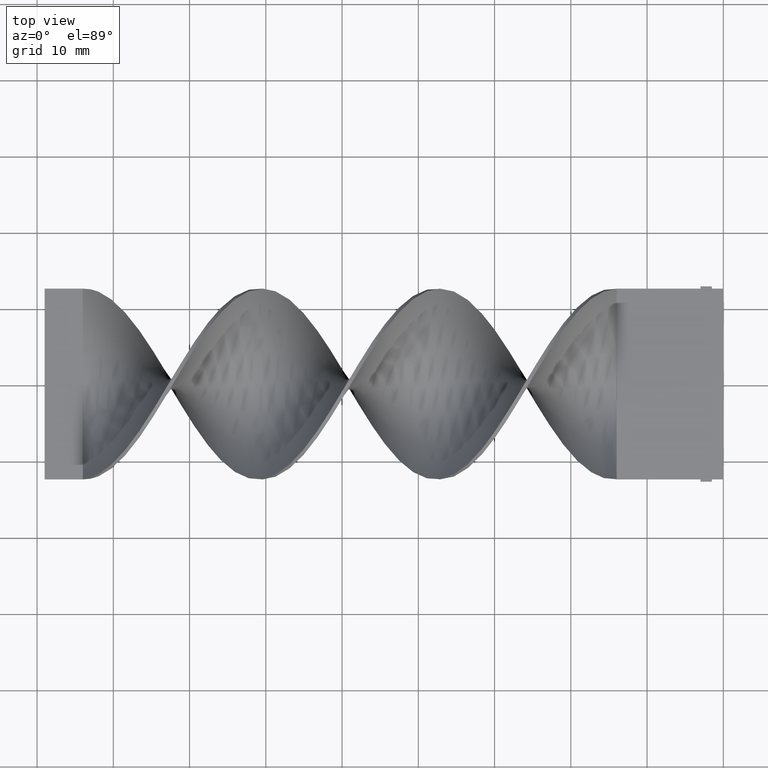
[diagram: clean part render]
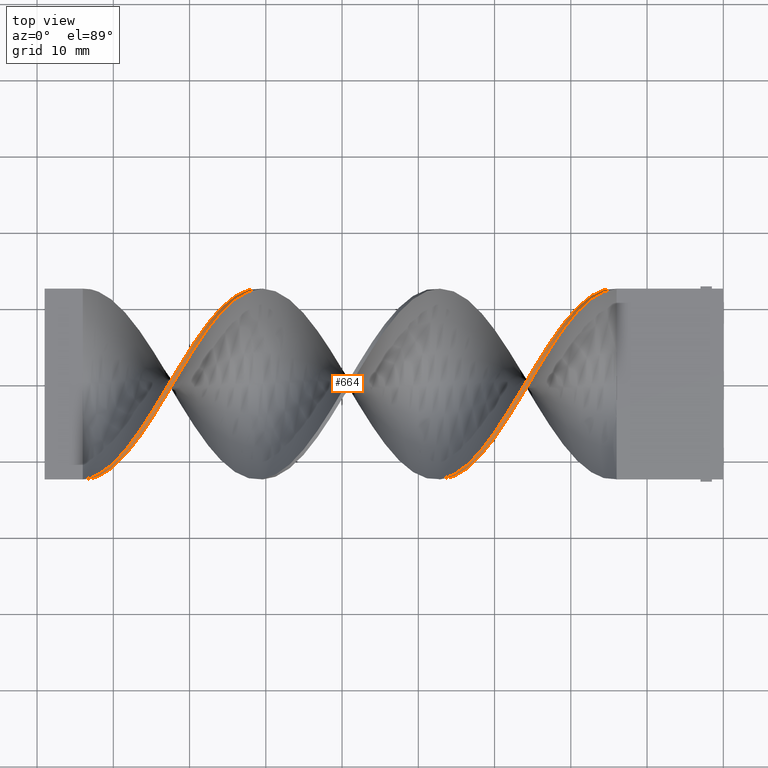
[diagram: same view with one face highlighted and labeled with its STEP entity id]
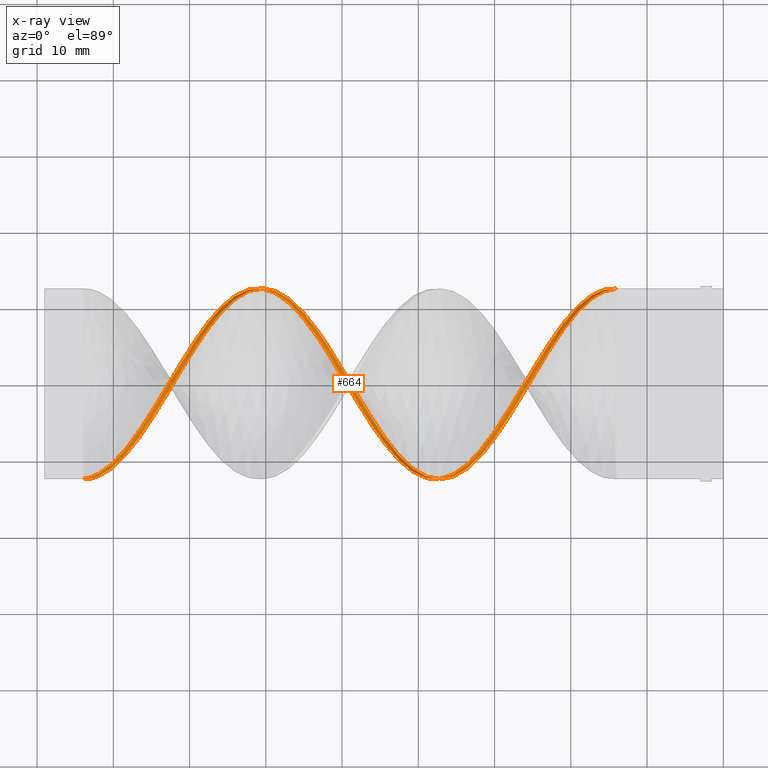
[diagram: x-ray of the same camera — body ghosted, the highlighted face saturated]
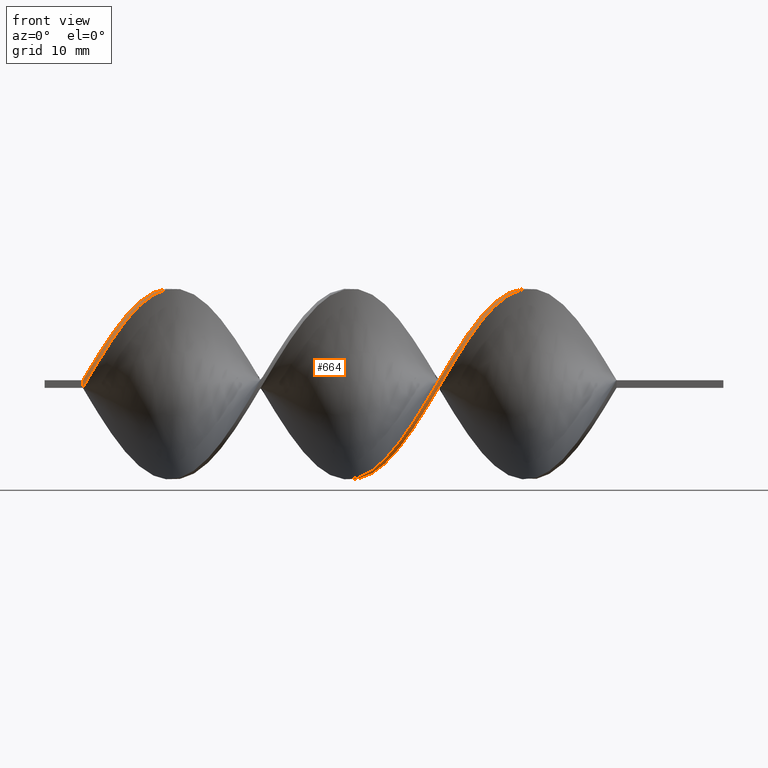
[diagram: same view with one face highlighted and labeled with its STEP entity id]
A machine part, top view. The second image highlights one B-rep face of the part: STEP entity #664.
The next image is the same camera in x-ray: the body ghosted, the highlighted face saturated — about 2% of this face is hidden behind the body in this view.
A second angle (front view) of the same face is appended — the face is thin or edge-on in the first view.
In plain terms, the highlighted face is a freeform B-spline surface patch.
Its self-contained STEP definition (entity closure, byte-faithful):
#2 = EDGE_CURVE ( 'NONE', #1228, #751, #1031, .T. ) ;
#14 = CARTESIAN_POINT ( 'NONE',  ( -80.41025641025640880, -11.30056190668700822, 5.366311637720503569 ) ) ;
#17 = CARTESIAN_POINT ( 'NONE',  ( -28.35897435897435770, -3.965052966688987546, 11.86500547708895326 ) ) ;
#20 = CARTESIAN_POINT ( 'NONE',  ( -25.66666666666666785, -0.5036723384328426478, 12.59180846082103855 ) ) ;
#23 = CARTESIAN_POINT ( 'NONE',  ( -83.10256410256410220, -12.56071099161113658, 1.017774790278262564 ) ) ;
#28 = CARTESIAN_POINT ( 'NONE',  ( -31.05128205128205821, -8.726917657472034406, 9.091107431892414326 ) ) ;
#32 = CARTESIAN_POINT ( 'NONE',  ( -81.30769230769233502, -11.95215010832773039, 3.994174999484638722 ) ) ;
#36 = CARTESIAN_POINT ( 'NONE',  ( -15.79487179487179205, 12.01711488568186859, 3.476916712307497548 ) ) ;
#37 = CARTESIAN_POINT ( 'NONE',  ( -27.46153846153846345, -3.502453542048290291, 12.10537671137499238 ) ) ;
#50 = CARTESIAN_POINT ( 'NONE',  ( -32.84615384615384670, -10.07673670631160689, 7.567476692410685324 ) ) ;
#53 = EDGE_CURVE ( 'NONE', #751, #1362, #1312, .T. ) ;
#65 = CARTESIAN_POINT ( 'NONE',  ( -24.76923076923076650, 2.003062940240565304, 12.34859258609801458 ) ) ;
#68 = CARTESIAN_POINT ( 'NONE',  ( -64.25641025641024839, 10.83583873464323943, 6.251767663373711592 ) ) ;
#75 = CARTESIAN_POINT ( 'NONE',  ( -46.30769230769230660, -3.965052966688992875, -11.86500547708895148 ) ) ;
#78 = CARTESIAN_POINT ( 'NONE',  ( -56.17948717948717530, 10.64897370504628604, -6.738448275956370637 ) ) ;
#79 = CARTESIAN_POINT ( 'NONE',  ( -57.07692307692307310, 10.83583873464323410, -6.251767663373719586 ) ) ;
#80 = LINE ( 'NONE', #1460, #723 ) ;
#84 = CARTESIAN_POINT ( 'NONE',  ( -77.71794871794872961, -8.726917657472034406, 9.091107431892414326 ) ) ;
#88 = CARTESIAN_POINT ( 'NONE',  ( -60.66666666666666430, 12.49999999999999822, -0.5000000000000000000 ) ) ;
#89 = CARTESIAN_POINT ( 'NONE',  ( -56.17948717948717530, 10.07673670631160334, -7.567476692410687100 ) ) ;
#95 = CARTESIAN_POINT ( 'NONE',  ( -37.33333333333332860, -12.50000000000000178, 0.5000000000000015543 ) ) ;
#104 = CARTESIAN_POINT ( 'NONE',  ( -75.92307692307691980, -5.405725462660114111, 11.38356088229227048 ) ) ;
#105 = CARTESIAN_POINT ( 'NONE',  ( -39.12820512820512420, -12.25643054996943171, -2.505974894881441539 ) ) ;
#109 = CARTESIAN_POINT ( 'NONE',  ( -18.48717948717948545, 10.07673670631160512, 7.567476692410683548 ) ) ;
#110 = CARTESIAN_POINT ( 'NONE',  ( -80.41025641025640880, -10.83583873464324121, 6.251767663373713368 ) ) ;
#113 = CARTESIAN_POINT ( 'NONE',  ( -23.87179487179487580, 3.502453542048288071, 12.10537671137499238 ) ) ;
#128 = CARTESIAN_POINT ( 'NONE',  ( -20.28205128205128460, 7.972909339725125832, 9.759100511780298248 ) ) ;
#135 = CARTESIAN_POINT ( 'NONE',  ( -27.46153846153846345, -2.524380470717864977, 12.34645007188564136 ) ) ;
#153 = CARTESIAN_POINT ( 'NONE',  ( -35.53846153846153300, -12.01711488568187214, 3.476916712307501989 ) ) ;
#155 = CARTESIAN_POINT ( 'NONE',  ( -32.84615384615384670, -10.64897370504628960, 6.738448275956368860 ) ) ;
#163 = CARTESIAN_POINT ( 'NONE',  ( -31.94871794871794535, -9.687945681259160224, 7.914777853924392481 ) ) ;
#182 = CARTESIAN_POINT ( 'NONE',  ( -21.17948717948717885, 7.512301267086275658, 10.00326595030512777 ) ) ;
#195 = CARTESIAN_POINT ( 'NONE',  ( -52.58974358974358410, 6.297684876700509804, -10.91542446871784477 ) ) ;
#206 = CARTESIAN_POINT ( 'NONE',  ( -57.97435897435897090, 11.59494076297487197, -4.936058634336744966 ) ) ;
#207 = CARTESIAN_POINT ( 'NONE',  ( -55.28205128205128460, 9.024823023018360146, -8.663288602095494895 ) ) ;
#212 = CARTESIAN_POINT ( 'NONE',  ( -72.33333333333332860, -0.5036723384328426478, 12.59180846082103855 ) ) ;
#216 = CARTESIAN_POINT ( 'NONE',  ( -70.53846153846153300, 3.502453542048288071, 12.10537671137499238 ) ) ;
#217 = CARTESIAN_POINT ( 'NONE',  ( -68.74358974358973740, 6.297684876700516021, 10.91542446871784655 ) ) ;
#220 = CARTESIAN_POINT ( 'NONE',  ( -70.53846153846153300, 2.524380470717862757, 12.34645007188563959 ) ) ;
#223 = CARTESIAN_POINT ( 'NONE',  ( -69.64102564102564941, 3.965052966688987546, 11.86500547708895148 ) ) ;
#227 = CARTESIAN_POINT ( 'NONE',  ( -60.66666666666666430, 12.49999999999999822, -0.5000000000000000000 ) ) ;
#233 = CARTESIAN_POINT ( 'NONE',  ( -49.89743589743589069, 1.010354066142500118, -12.46912926635333818 ) ) ;
#234 = CARTESIAN_POINT ( 'NONE',  ( -37.33333333333332860, -12.50000000000000178, 0.5000000000000015543 ) ) ;
#240 = CARTESIAN_POINT ( 'NONE',  ( -26.56410256410256210, -2.003062940240564860, 12.34859258609801458 ) ) ;
#243 = CARTESIAN_POINT ( 'NONE',  ( -20.28205128205128460, 8.726917657472036183, 9.091107431892410773 ) ) ;
#247 = CARTESIAN_POINT ( 'NONE',  ( -13.99999999999999822, 12.49999999999999822, 0.5000000000000000000 ) ) ;
#251 = CARTESIAN_POINT ( 'NONE',  ( -81.30769230769232081, -11.95215010832773039, 3.994174999484638722 ) ) ;
#254 = CARTESIAN_POINT ( 'NONE',  ( -29.25641025641025905, -6.297684876700517798, 10.91542446871784655 ) ) ;
#255 = CARTESIAN_POINT ( 'NONE',  ( -13.99999999999999822, 12.49999999999999822, -0.5000000000000000000 ) ) ;
#258 = CARTESIAN_POINT ( 'NONE',  ( -76.82051282051281760, -7.512301267086276546, 10.00326595030512955 ) ) ;
#259 = ORIENTED_EDGE ( 'NONE', *, *, #832, .T. ) ;
#268 = CARTESIAN_POINT ( 'NONE',  ( -28.35897435897435770, -4.900069209374403378, 11.51040059004641769 ) ) ;
#279 = CARTESIAN_POINT ( 'NONE',  ( -40.02564102564102200, -11.59494076297487730, -4.936058634336734308 ) ) ;
#284 = CARTESIAN_POINT ( 'NONE',  ( -32.84615384615384670, -10.64897370504628960, 6.738448275956369748 ) ) ;
#287 = CARTESIAN_POINT ( 'NONE',  ( -31.05128205128205465, -7.972909339725124944, 9.759100511780301801 ) ) ;
#289 = CARTESIAN_POINT ( 'NONE',  ( -84.00000000000000000, -12.50000000000000178, -0.4999999999999985012 ) ) ;
#290 = CARTESIAN_POINT ( 'NONE',  ( -35.53846153846153300, -12.25643054996943171, 2.505974894881450421 ) ) ;
#293 = CARTESIAN_POINT ( 'NONE',  ( -76.82051282051281760, -6.689317401192620416, 10.57133069703628436 ) ) ;
#296 = CARTESIAN_POINT ( 'NONE',  ( -34.64102564102564230, -11.59494076297487553, 4.936058634336743189 ) ) ;
#299 = ORIENTED_EDGE ( 'NONE', *, *, #2, .F. ) ;
#303 =( BOUNDED_SURFACE ( )  B_SPLINE_SURFACE ( 1, 2, ( 
 ( #1589, #1614, #1154, #755, #1397, #1016, #1504, #128, #773, #898, #1035, #882, #394, #20, #764, #37, #268, #1274, #646, #28, #163, #284, #1025, #527, #654, #782, #1286, #662, #1163, #1528, #423, #792, #1376, #323, #715, #466, #75, #1100, #1559, #959, #1231, #1587, #456, #195, #485, #969, #1212, #1467, #708, #823, #1450, #352, #1599, #1575, #846, #1329, #68, #1337, #576, #334, #583, #698, #223, #1347, #722, #212, #1084, #1568, #1075, #952, #834, #84, #592, #776, #14, #32, #878, #23, #591 ),
 ( #1176, #1421, #305, #426, #1174, #441, #983, #243, #349, #743, #370, #113, #340, #1610, #1248, #135, #17, #523, #1524, #1011, #1509, #889, #541, #1402, #153, #1359, #234, #1581, #105, #965, #1461, #1479, #611, #1472, #859, #618, #727, #1604, #1088, #326, #1580, #1323, #955, #838, #1334, #964, #207, #1224, #79, #603, #1104, #825, #88, #1080, #1561, #1602, #1340, #972, #1470, #356, #477, #1441, #980, #216, #850, #615, #535, #1171, #1191, #333, #293, #568, #448, #935, #311, #1138, #472, #359, #1445 ) ),
 .UNSPECIFIED., .F., .F., .F. ) 
 B_SPLINE_SURFACE_WITH_KNOTS ( ( 2, 2 ),
 ( 3, 2, 2, 2, 2, 2, 2, 2, 2, 2, 2, 2, 2, 2, 2, 2, 2, 2, 2, 2, 2, 2, 2, 2, 2, 2, 2, 2, 2, 2, 2, 2, 2, 2, 2, 2, 2, 2, 2, 3 ),
 ( 0.000000000000000000, 1.000000000000000000 ),
 ( 0.000000000000000000, 0.01923076923076923184, 0.03846153846153846367, 0.05769230769230769551, 0.07692307692307692735, 0.09615384615384615918, 0.1153846153846153910, 0.1346153846153846090, 0.1538461538461538547, 0.1730769230769230727, 0.1923076923076923184, 0.2115384615384615363, 0.2307692307692307820, 0.2500000000000000000, 0.2692307692307692180, 0.2884615384615384359, 0.3076923076923077094, 0.3269230769230769273, 0.3461538461538461453, 0.3653846153846153633, 0.3846153846153846367, 0.4038461538461538547, 0.4230769230769230727, 0.4423076923076922906, 0.4615384615384615641, 0.4807692307692307820, 0.5000000000000000000, 0.5192307692307692735, 0.5384615384615384359, 0.5576923076923077094, 0.5769230769230768718, 0.5961538461538461453, 0.6153846153846154188, 0.6346153846153845812, 0.6538461538461538547, 0.6730769230769231282, 0.6923076923076922906, 0.7115384615384615641, 0.7307692307692307265, 0.7500000000000000000 ),
 .UNSPECIFIED. ) 
 GEOMETRIC_REPRESENTATION_ITEM ( )  RATIONAL_B_SPLINE_SURFACE ( (
 ( 1.000000000000000000, 0.9927088740980539727, 1.000000000000000000, 0.9927088740980539727, 1.000000000000000000, 0.9927088740980539727, 1.000000000000000000, 0.9927088740980539727, 1.000000000000000000, 0.9927088740980539727, 1.000000000000000000, 0.9927088740980539727, 1.000000000000000000, 0.9927088740980539727, 1.000000000000000000, 0.9927088740980539727, 1.000000000000000000, 0.9927088740980539727, 1.000000000000000000, 0.9927088740980539727, 1.000000000000000000, 0.9927088740980539727, 1.000000000000000000, 0.9927088740980539727, 1.000000000000000000, 0.9927088740980539727, 1.000000000000000000, 0.9927088740980539727, 1.000000000000000000, 0.9927088740980539727, 1.000000000000000000, 0.9927088740980539727, 1.000000000000000000, 0.9927088740980539727, 1.000000000000000000, 0.9927088740980539727, 1.000000000000000000, 0.9927088740980539727, 1.000000000000000000, 0.9927088740980539727, 1.000000000000000000, 0.9927088740980539727, 1.000000000000000000, 0.9927088740980539727, 1.000000000000000000, 0.9927088740980539727, 1.000000000000000000, 0.9927088740980539727, 1.000000000000000000, 0.9927088740980539727, 1.000000000000000000, 0.9927088740980539727, 1.000000000000000000, 0.9927088740980539727, 1.000000000000000000, 0.9927088740980539727, 1.000000000000000000, 0.9927088740980539727, 1.000000000000000000, 0.9927088740980539727, 1.000000000000000000, 0.9927088740980539727, 1.000000000000000000, 0.9927088740980539727, 1.000000000000000000, 0.9927088740980539727, 1.000000000000000000, 0.9927088740980539727, 1.000000000000000000, 0.9927088740980539727, 1.000000000000000000, 0.9927088740980539727, 1.000000000000000000, 0.9927088740980539727, 1.000000000000000000, 0.9927088740980539727, 1.000000000000000000, 0.9927088740980539727, 1.000000000000000000),
 ( 1.000000000000000000, 0.9927088740980539727, 1.000000000000000000, 0.9927088740980539727, 1.000000000000000000, 0.9927088740980539727, 1.000000000000000000, 0.9927088740980539727, 1.000000000000000000, 0.9927088740980539727, 1.000000000000000000, 0.9927088740980539727, 1.000000000000000000, 0.9927088740980539727, 1.000000000000000000, 0.9927088740980539727, 1.000000000000000000, 0.9927088740980539727, 1.000000000000000000, 0.9927088740980539727, 1.000000000000000000, 0.9927088740980539727, 1.000000000000000000, 0.9927088740980539727, 1.000000000000000000, 0.9927088740980539727, 1.000000000000000000, 0.9927088740980539727, 1.000000000000000000, 0.9927088740980539727, 1.000000000000000000, 0.9927088740980539727, 1.000000000000000000, 0.9927088740980539727, 1.000000000000000000, 0.9927088740980539727, 1.000000000000000000, 0.9927088740980539727, 1.000000000000000000, 0.9927088740980539727, 1.000000000000000000, 0.9927088740980539727, 1.000000000000000000, 0.9927088740980539727, 1.000000000000000000, 0.9927088740980539727, 1.000000000000000000, 0.9927088740980539727, 1.000000000000000000, 0.9927088740980539727, 1.000000000000000000, 0.9927088740980539727, 1.000000000000000000, 0.9927088740980539727, 1.000000000000000000, 0.9927088740980539727, 1.000000000000000000, 0.9927088740980539727, 1.000000000000000000, 0.9927088740980539727, 1.000000000000000000, 0.9927088740980539727, 1.000000000000000000, 0.9927088740980539727, 1.000000000000000000, 0.9927088740980539727, 1.000000000000000000, 0.9927088740980539727, 1.000000000000000000, 0.9927088740980539727, 1.000000000000000000, 0.9927088740980539727, 1.000000000000000000, 0.9927088740980539727, 1.000000000000000000, 0.9927088740980539727, 1.000000000000000000, 0.9927088740980539727, 1.000000000000000000) ) ) 
 REPRESENTATION_ITEM ( '' )  SURFACE ( )  );
#305 = CARTESIAN_POINT ( 'NONE',  ( -15.79487179487179205, 12.25643054996942816, 2.505974894881445980 ) ) ;
#311 = CARTESIAN_POINT ( 'NONE',  ( -80.41025641025640880, -10.83583873464324121, 6.251767663373713368 ) ) ;
#317 = CARTESIAN_POINT ( 'NONE',  ( -13.99999999999999822, 12.49999999999999822, -0.5000000000000000000 ) ) ;
#323 = CARTESIAN_POINT ( 'NONE',  ( -43.61538461538461320, -7.972909339725131161, -9.759100511780294696 ) ) ;
#325 = CARTESIAN_POINT ( 'NONE',  ( -45.41025641025640880, -6.297684876700524903, -10.91542446871784122 ) ) ;
#326 = CARTESIAN_POINT ( 'NONE',  ( -49.00000000000000711, -0.5036723384328456454, -12.59180846082103855 ) ) ;
#331 = CARTESIAN_POINT ( 'NONE',  ( -69.64102564102564941, 3.965052966688987546, 11.86500547708895148 ) ) ;
#333 = CARTESIAN_POINT ( 'NONE',  ( -75.92307692307693401, -5.405725462660114999, 11.38356088229226870 ) ) ;
#334 = CARTESIAN_POINT ( 'NONE',  ( -66.94871794871794179, 7.972909339725125832, 9.759100511780298248 ) ) ;
#338 = CARTESIAN_POINT ( 'NONE',  ( -38.23076923076922640, -12.56071099161113480, -1.017774790278253905 ) ) ;
#340 = CARTESIAN_POINT ( 'NONE',  ( -24.76923076923076650, 2.003062940240565304, 12.34859258609801458 ) ) ;
#341 = CARTESIAN_POINT ( 'NONE',  ( -62.46153846153845990, 12.01711488568186859, 3.476916712307497548 ) ) ;
#346 = CARTESIAN_POINT ( 'NONE',  ( -76.82051282051281760, -6.689317401192620416, 10.57133069703628436 ) ) ;
#349 = CARTESIAN_POINT ( 'NONE',  ( -21.17948717948717885, 7.512301267086275658, 10.00326595030512777 ) ) ;
#352 = CARTESIAN_POINT ( 'NONE',  ( -59.76923076923077360, 12.56071099161113303, -1.017774790278264119 ) ) ;
#356 = CARTESIAN_POINT ( 'NONE',  ( -66.94871794871794179, 8.726917657472036183, 9.091107431892410773 ) ) ;
#357 = CARTESIAN_POINT ( 'NONE',  ( -72.33333333333332860, 0.5036723384328403164, 12.59180846082103855 ) ) ;
#359 = CARTESIAN_POINT ( 'NONE',  ( -83.10256410256410220, -12.43928900838887230, 2.017774790278262564 ) ) ;
#360 = CARTESIAN_POINT ( 'NONE',  ( -74.12820512820510999, -3.502453542048290291, 12.10537671137499238 ) ) ;
#368 = CARTESIAN_POINT ( 'NONE',  ( -66.94871794871795601, 8.726917657472036183, 9.091107431892412549 ) ) ;
#370 = CARTESIAN_POINT ( 'NONE',  ( -22.97435897435897090, 4.900069209374403378, 11.51040059004641591 ) ) ;
#373 = CARTESIAN_POINT ( 'NONE',  ( -20.28205128205128460, 7.972909339725126721, 9.759100511780298248 ) ) ;
#380 = CARTESIAN_POINT ( 'NONE',  ( -16.69230769230769340, 11.59494076297487375, 4.936058634336738749 ) ) ;
#387 = CARTESIAN_POINT ( 'NONE',  ( -27.46153846153846345, -3.502453542048290291, 12.10537671137499238 ) ) ;
#394 = CARTESIAN_POINT ( 'NONE',  ( -24.76923076923076650, 1.010354066142511442, 12.46912926635333640 ) ) ;
#404 = CARTESIAN_POINT ( 'NONE',  ( -78.61538461538461320, -9.687945681259160224, 7.914777853924392481 ) ) ;
#408 = CARTESIAN_POINT ( 'NONE',  ( -36.43589743589743790, -12.56071099161113480, 1.017774790278262564 ) ) ;
#412 = CARTESIAN_POINT ( 'NONE',  ( -79.51282051282051100, -10.64897370504628960, 6.738448275956368860 ) ) ;
#422 = CARTESIAN_POINT ( 'NONE',  ( -17.58974358974358765, 10.83583873464323943, 6.251767663373711592 ) ) ;
#423 = CARTESIAN_POINT ( 'NONE',  ( -40.92307692307691980, -10.83583873464324299, -6.251767663373710704 ) ) ;
#426 = CARTESIAN_POINT ( 'NONE',  ( -16.69230769230769695, 11.95215010832772862, 3.994174999484634281 ) ) ;
#428 = CARTESIAN_POINT ( 'NONE',  ( -40.92307692307691980, -10.83583873464324299, -6.251767663373710704 ) ) ;
#430 = CARTESIAN_POINT ( 'NONE',  ( -25.66666666666666785, 0.5036723384328403164, 12.59180846082103855 ) ) ;
#441 = CARTESIAN_POINT ( 'NONE',  ( -18.48717948717948545, 10.64897370504628782, 6.738448275956367972 ) ) ;
#448 = CARTESIAN_POINT ( 'NONE',  ( -78.61538461538461320, -9.024823023018365475, 8.663288602095494895 ) ) ;
#456 = CARTESIAN_POINT ( 'NONE',  ( -51.69230769230769340, 4.900069209374400714, -11.51040059004641769 ) ) ;
#459 = CARTESIAN_POINT ( 'NONE',  ( -30.15384615384615330, -6.689317401192620416, 10.57133069703628436 ) ) ;
#463 = CARTESIAN_POINT ( 'NONE',  ( -66.05128205128204399, 9.024823023018365475, 8.663288602095489566 ) ) ;
#466 = CARTESIAN_POINT ( 'NONE',  ( -45.41025641025640880, -5.405725462660122993, -11.38356088229226515 ) ) ;
#468 = CARTESIAN_POINT ( 'NONE',  ( -41.82051282051281760, -10.07673670631161045, -7.567476692410682659 ) ) ;
#469 = CARTESIAN_POINT ( 'NONE',  ( -46.30769230769230660, -4.900069209374408707, -11.51040059004641591 ) ) ;
#472 = CARTESIAN_POINT ( 'NONE',  ( -82.20512820512820440, -12.01711488568187214, 3.476916712307501989 ) ) ;
#477 = CARTESIAN_POINT ( 'NONE',  ( -67.84615384615385381, 7.512301267086275658, 10.00326595030512777 ) ) ;
#485 = CARTESIAN_POINT ( 'NONE',  ( -53.48717948717948900, 7.512301267086271217, -10.00326595030513133 ) ) ;
#488 = CARTESIAN_POINT ( 'NONE',  ( -63.35897435897436480, 11.95215010832772862, 3.994174999484634281 ) ) ;
#494 = CARTESIAN_POINT ( 'NONE',  ( -54.38461538461538680, 7.972909339725116062, -9.759100511780305354 ) ) ;
#500 = CARTESIAN_POINT ( 'NONE',  ( -77.71794871794874382, -7.972909339725124944, 9.759100511780301801 ) ) ;
#511 = CARTESIAN_POINT ( 'NONE',  ( -13.99999999999999822, 12.49999999999999822, 0.5000000000000000000 ) ) ;
#523 = CARTESIAN_POINT ( 'NONE',  ( -29.25641025641025905, -5.405725462660114999, 11.38356088229226870 ) ) ;
#527 = CARTESIAN_POINT ( 'NONE',  ( -34.64102564102564230, -11.95215010832773039, 3.994174999484638722 ) ) ;
#535 = CARTESIAN_POINT ( 'NONE',  ( -73.23076923076924061, -1.010354066142510998, 12.46912926635333640 ) ) ;
#541 = CARTESIAN_POINT ( 'NONE',  ( -33.74358974358974450, -10.83583873464324121, 6.251767663373713368 ) ) ;
#544 = CARTESIAN_POINT ( 'NONE',  ( -31.05128205128205465, -8.726917657472034406, 9.091107431892416102 ) ) ;
#547 = CARTESIAN_POINT ( 'NONE',  ( -37.33333333333332860, -12.50000000000000178, -0.4999999999999985012 ) ) ;
#555 = CARTESIAN_POINT ( 'NONE',  ( -19.38461538461538325, 9.687945681259160224, 7.914777853924387152 ) ) ;
#568 = CARTESIAN_POINT ( 'NONE',  ( -77.71794871794872961, -7.972909339725124056, 9.759100511780301801 ) ) ;
#570 = CARTESIAN_POINT ( 'NONE',  ( -51.69230769230769340, 4.900069209374400714, -11.51040059004641769 ) ) ;
#576 = CARTESIAN_POINT ( 'NONE',  ( -66.05128205128204399, 9.024823023018365475, 8.663288602095489566 ) ) ;
#578 = CARTESIAN_POINT ( 'NONE',  ( -47.20512820512820440, -2.524380470717865421, -12.34645007188563959 ) ) ;
#580 = CARTESIAN_POINT ( 'NONE',  ( -23.87179487179487580, 3.502453542048288071, 12.10537671137499238 ) ) ;
#583 = CARTESIAN_POINT ( 'NONE',  ( -67.84615384615385381, 6.689317401192619528, 10.57133069703628259 ) ) ;
#586 = CARTESIAN_POINT ( 'NONE',  ( -42.71794871794872250, -9.687945681259165553, -7.914777853924385376 ) ) ;
#588 = CARTESIAN_POINT ( 'NONE',  ( -75.02564102564102200, -4.900069209374403378, 11.51040059004641769 ) ) ;
#591 = CARTESIAN_POINT ( 'NONE',  ( -84.00000000000000000, -12.50000000000000178, -0.4999999999999985012 ) ) ;
#592 = CARTESIAN_POINT ( 'NONE',  ( -78.61538461538461320, -9.687945681259160224, 7.914777853924392481 ) ) ;
#603 = CARTESIAN_POINT ( 'NONE',  ( -57.97435897435897090, 11.59494076297487197, -4.936058634336744966 ) ) ;
#604 = CARTESIAN_POINT ( 'NONE',  ( -41.82051282051281760, -10.64897370504629315, -6.738448275956366196 ) ) ;
#607 = CARTESIAN_POINT ( 'NONE',  ( -63.35897435897436480, 11.59494076297487375, 4.936058634336738749 ) ) ;
#610 = CARTESIAN_POINT ( 'NONE',  ( -52.58974358974359120, 5.405725462660103453, -11.38356088229227225 ) ) ;
#611 = CARTESIAN_POINT ( 'NONE',  ( -42.71794871794872250, -9.687945681259165553, -7.914777853924385376 ) ) ;
#615 = CARTESIAN_POINT ( 'NONE',  ( -72.33333333333332860, 0.5036723384328402053, 12.59180846082103855 ) ) ;
#617 = CARTESIAN_POINT ( 'NONE',  ( -58.87179487179486870, 12.01711488568186681, -3.476916712307509094 ) ) ;
#618 = CARTESIAN_POINT ( 'NONE',  ( -45.41025641025640880, -6.297684876700524903, -10.91542446871784122 ) ) ;
#621 = EDGE_LOOP ( 'NONE', ( #1246, #259, #1352, #299 ) ) ;
#646 = CARTESIAN_POINT ( 'NONE',  ( -30.15384615384615330, -7.512301267086276546, 10.00326595030512955 ) ) ;
#654 = CARTESIAN_POINT ( 'NONE',  ( -35.53846153846153300, -12.25643054996943171, 2.505974894881450421 ) ) ;
#661 = CARTESIAN_POINT ( 'NONE',  ( -33.74358974358974450, -11.30056190668700822, 5.366311637720503569 ) ) ;
#662 = CARTESIAN_POINT ( 'NONE',  ( -38.23076923076922640, -12.43928900838887230, -2.017774790278253683 ) ) ;
#664 = ADVANCED_FACE ( 'NONE', ( #678 ), #303, .T. ) ;
#674 = CARTESIAN_POINT ( 'NONE',  ( -20.28205128205128460, 8.726917657472036183, 9.091107431892412549 ) ) ;
#678 = FACE_OUTER_BOUND ( 'NONE', #621, .T. ) ;
#689 = CARTESIAN_POINT ( 'NONE',  ( -50.79487179487178850, 3.502453542048282742, -12.10537671137499238 ) ) ;
#690 = CARTESIAN_POINT ( 'NONE',  ( -18.48717948717948545, 10.64897370504628782, 6.738448275956367084 ) ) ;
#698 = CARTESIAN_POINT ( 'NONE',  ( -68.74358974358973740, 5.405725462660113223, 11.38356088229226870 ) ) ;
#702 = CARTESIAN_POINT ( 'NONE',  ( -54.38461538461538680, 8.726917657472025525, -9.091107431892417878 ) ) ;
#703 = CARTESIAN_POINT ( 'NONE',  ( -67.84615384615385381, 7.512301267086275658, 10.00326595030512777 ) ) ;
#706 = CARTESIAN_POINT ( 'NONE',  ( -57.07692307692307310, 11.30056190668700289, -5.366311637720509786 ) ) ;
#708 = CARTESIAN_POINT ( 'NONE',  ( -57.07692307692307310, 11.30056190668700289, -5.366311637720509786 ) ) ;
#710 = CARTESIAN_POINT ( 'NONE',  ( -79.51282051282051100, -10.07673670631160689, 7.567476692410685324 ) ) ;
#715 = CARTESIAN_POINT ( 'NONE',  ( -44.51282051282051100, -6.689317401192623080, -10.57133069703628259 ) ) ;
#717 = CARTESIAN_POINT ( 'NONE',  ( -53.48717948717948900, 6.689317401192615087, -10.57133069703628614 ) ) ;
#722 = CARTESIAN_POINT ( 'NONE',  ( -71.43589743589743080, 1.010354066142511442, 12.46912926635333640 ) ) ;
#723 = VECTOR ( 'NONE', #739, 1000.000000000000000 ) ;
#726 = CARTESIAN_POINT ( 'NONE',  ( -61.56410256410256920, 12.56071099161113125, 1.017774790278256569 ) ) ;
#727 = CARTESIAN_POINT ( 'NONE',  ( -46.30769230769230660, -4.900069209374408707, -11.51040059004641591 ) ) ;
#732 = CARTESIAN_POINT ( 'NONE',  ( -73.23076923076924061, -1.010354066142510998, 12.46912926635333640 ) ) ;
#739 = DIRECTION ( 'NONE',  ( -0.000000000000000000, -0.000000000000000000, -1.000000000000000000 ) ) ;
#743 = CARTESIAN_POINT ( 'NONE',  ( -22.07692307692308376, 6.297684876700516909, 10.91542446871784477 ) ) ;
#744 = CARTESIAN_POINT ( 'NONE',  ( -80.41025641025640880, -11.30056190668700822, 5.366311637720503569 ) ) ;
#751 = VERTEX_POINT ( 'NONE', #1182 ) ;
#754 = CARTESIAN_POINT ( 'NONE',  ( -83.10256410256410220, -12.56071099161113480, 1.017774790278262564 ) ) ;
#755 = CARTESIAN_POINT ( 'NONE',  ( -16.69230769230769695, 11.59494076297487375, 4.936058634336738749 ) ) ;
#757 = CARTESIAN_POINT ( 'NONE',  ( -30.15384615384615330, -7.512301267086276546, 10.00326595030512955 ) ) ;
#764 = CARTESIAN_POINT ( 'NONE',  ( -26.56410256410256210, -2.003062940240564860, 12.34859258609801458 ) ) ;
#773 = CARTESIAN_POINT ( 'NONE',  ( -21.17948717948717885, 6.689317401192619528, 10.57133069703628259 ) ) ;
#776 = CARTESIAN_POINT ( 'NONE',  ( -79.51282051282051100, -10.64897370504628960, 6.738448275956369748 ) ) ;
#782 = CARTESIAN_POINT ( 'NONE',  ( -36.43589743589743790, -12.56071099161113658, 1.017774790278262564 ) ) ;
#792 = CARTESIAN_POINT ( 'NONE',  ( -41.82051282051281760, -10.07673670631161222, -7.567476692410682659 ) ) ;
#795 = CARTESIAN_POINT ( 'NONE',  ( -31.94871794871794535, -9.024823023018365475, 8.663288602095494895 ) ) ;
#802 = CARTESIAN_POINT ( 'NONE',  ( -35.53846153846153300, -12.01711488568187214, 3.476916712307501989 ) ) ;
#811 = CARTESIAN_POINT ( 'NONE',  ( -15.79487179487179205, 12.25643054996942816, 2.505974894881445980 ) ) ;
#816 = CARTESIAN_POINT ( 'NONE',  ( -42.71794871794872250, -9.024823023018370804, -8.663288602095487789 ) ) ;
#817 = CARTESIAN_POINT ( 'NONE',  ( -27.46153846153846345, -2.524380470717864977, 12.34645007188563959 ) ) ;
#823 = CARTESIAN_POINT ( 'NONE',  ( -57.97435897435897090, 11.95215010832772684, -3.994174999484640498 ) ) ;
#825 = CARTESIAN_POINT ( 'NONE',  ( -59.76923076923077360, 12.43928900838886875, -2.017774790278263897 ) ) ;
#832 = EDGE_CURVE ( 'NONE', #1236, #1362, #1591, .T. ) ;
#834 = CARTESIAN_POINT ( 'NONE',  ( -76.82051282051281760, -7.512301267086276546, 10.00326595030512955 ) ) ;
#837 = CARTESIAN_POINT ( 'NONE',  ( -74.12820512820510999, -2.524380470717864977, 12.34645007188563959 ) ) ;
#838 = CARTESIAN_POINT ( 'NONE',  ( -52.58974358974358410, 5.405725462660103453, -11.38356088229227048 ) ) ;
#843 = CARTESIAN_POINT ( 'NONE',  ( -51.69230769230769340, 3.965052966688984881, -11.86500547708895326 ) ) ;
#846 = CARTESIAN_POINT ( 'NONE',  ( -62.46153846153845990, 12.01711488568186859, 3.476916712307497548 ) ) ;
#850 = CARTESIAN_POINT ( 'NONE',  ( -71.43589743589743080, 2.003062940240565304, 12.34859258609801458 ) ) ;
#851 = CARTESIAN_POINT ( 'NONE',  ( -36.43589743589743790, -12.43928900838887230, 2.017774790278262564 ) ) ;
#858 = CARTESIAN_POINT ( 'NONE',  ( -71.43589743589743080, 2.003062940240565304, 12.34859258609801458 ) ) ;
#859 = CARTESIAN_POINT ( 'NONE',  ( -44.51282051282051100, -7.512301267086279211, -10.00326595030512777 ) ) ;
#875 = CARTESIAN_POINT ( 'NONE',  ( -28.35897435897435770, -4.900069209374403378, 11.51040059004641769 ) ) ;
#878 = CARTESIAN_POINT ( 'NONE',  ( -82.20512820512820440, -12.25643054996943171, 2.505974894881450421 ) ) ;
#882 = CARTESIAN_POINT ( 'NONE',  ( -23.87179487179487580, 2.524380470717862757, 12.34645007188564136 ) ) ;
#889 = CARTESIAN_POINT ( 'NONE',  ( -32.84615384615384670, -10.07673670631160867, 7.567476692410685324 ) ) ;
#891 = CARTESIAN_POINT ( 'NONE',  ( -82.20512820512820440, -12.25643054996943171, 2.505974894881450421 ) ) ;
#894 = CARTESIAN_POINT ( 'NONE',  ( -39.12820512820512420, -12.01711488568187569, -3.476916712307494439 ) ) ;
#895 = EDGE_CURVE ( 'NONE', #1228, #1236, #80, .T. ) ;
#898 = CARTESIAN_POINT ( 'NONE',  ( -22.07692307692308376, 5.405725462660113223, 11.38356088229226870 ) ) ;
#922 = CARTESIAN_POINT ( 'NONE',  ( -44.51282051282051100, -6.689317401192623080, -10.57133069703628259 ) ) ;
#929 = CARTESIAN_POINT ( 'NONE',  ( -14.89743589743589602, 12.56071099161113125, 1.017774790278256569 ) ) ;
#935 = CARTESIAN_POINT ( 'NONE',  ( -79.51282051282051100, -10.07673670631160867, 7.567476692410685324 ) ) ;
#942 = CARTESIAN_POINT ( 'NONE',  ( -53.48717948717948900, 7.512301267086271217, -10.00326595030513133 ) ) ;
#948 = CARTESIAN_POINT ( 'NONE',  ( -68.74358974358973740, 5.405725462660112335, 11.38356088229227048 ) ) ;
#952 = CARTESIAN_POINT ( 'NONE',  ( -75.92307692307693401, -6.297684876700518686, 10.91542446871784477 ) ) ;
#954 = CARTESIAN_POINT ( 'NONE',  ( -62.46153846153845990, 12.25643054996942816, 2.505974894881445980 ) ) ;
#955 = CARTESIAN_POINT ( 'NONE',  ( -51.69230769230769340, 3.965052966688984881, -11.86500547708895326 ) ) ;
#959 = CARTESIAN_POINT ( 'NONE',  ( -49.00000000000000711, 0.5036723384328373188, -12.59180846082103855 ) ) ;
#963 = CARTESIAN_POINT ( 'NONE',  ( -66.05128205128204399, 9.687945681259160224, 7.914777853924387152 ) ) ;
#964 = CARTESIAN_POINT ( 'NONE',  ( -54.38461538461538680, 7.972909339725115174, -9.759100511780305354 ) ) ;
#965 = CARTESIAN_POINT ( 'NONE',  ( -40.02564102564102200, -11.95215010832773217, -3.994174999484630284 ) ) ;
#969 = CARTESIAN_POINT ( 'NONE',  ( -54.38461538461538680, 8.726917657472025525, -9.091107431892417878 ) ) ;
#972 = CARTESIAN_POINT ( 'NONE',  ( -65.15384615384614619, 10.64897370504628782, 6.738448275956367972 ) ) ;
#973 = CARTESIAN_POINT ( 'NONE',  ( -70.53846153846153300, 3.502453542048288071, 12.10537671137499238 ) ) ;
#975 = CARTESIAN_POINT ( 'NONE',  ( -72.33333333333332860, -0.5036723384328426478, 12.59180846082103855 ) ) ;
#980 = CARTESIAN_POINT ( 'NONE',  ( -69.64102564102564941, 4.900069209374403378, 11.51040059004641591 ) ) ;
#981 = CARTESIAN_POINT ( 'NONE',  ( -81.30769230769232081, -11.59494076297487553, 4.936058634336743189 ) ) ;
#983 = CARTESIAN_POINT ( 'NONE',  ( -19.38461538461538325, 9.687945681259160224, 7.914777853924387152 ) ) ;
#984 = CARTESIAN_POINT ( 'NONE',  ( -60.66666666666666430, 12.49999999999999822, 0.5000000000000000000 ) ) ;
#989 = CARTESIAN_POINT ( 'NONE',  ( -22.07692307692308020, 5.405725462660112335, 11.38356088229227048 ) ) ;
#1000 = CARTESIAN_POINT ( 'NONE',  ( -22.97435897435897090, 3.965052966688987546, 11.86500547708895148 ) ) ;
#1011 = CARTESIAN_POINT ( 'NONE',  ( -31.05128205128205821, -7.972909339725124056, 9.759100511780301801 ) ) ;
#1013 = CARTESIAN_POINT ( 'NONE',  ( -75.92307692307691980, -6.297684876700517798, 10.91542446871784655 ) ) ;
#1016 = CARTESIAN_POINT ( 'NONE',  ( -18.48717948717948545, 10.07673670631160689, 7.567476692410683548 ) ) ;
#1023 = CARTESIAN_POINT ( 'NONE',  ( -77.71794871794874382, -8.726917657472034406, 9.091107431892416102 ) ) ;
#1025 = CARTESIAN_POINT ( 'NONE',  ( -33.74358974358974450, -11.30056190668700822, 5.366311637720503569 ) ) ;
#1029 = CARTESIAN_POINT ( 'NONE',  ( -38.23076923076922640, -12.43928900838887230, -2.017774790278253683 ) ) ;
#1031 =( BOUNDED_CURVE ( )  B_SPLINE_CURVE ( 2, ( #511, #1243, #36, #380, #422, #109, #1357, #373, #1254, #989, #1000, #1486, #1364, #1497, #240, #387, #875, #254, #757, #544, #1261, #155, #661, #1162, #290, #408, #547, #1029, #894, #279, #428, #468, #816, #1058, #922, #1570, #1050, #578, #1078, #1538, #1300, #689, #570, #1553, #942, #702, #1206, #78, #706, #1095, #1474, #1463, #984, #1483, #341, #607, #1344, #1565, #463, #1107, #1596, #948, #331, #220, #1227, #975, #1327, #360, #588, #1013, #258, #1023, #404, #412, #744, #251, #891, #754, #1259 ),
 .UNSPECIFIED., .F., .T. ) 
 B_SPLINE_CURVE_WITH_KNOTS ( ( 3, 2, 2, 2, 2, 2, 2, 2, 2, 2, 2, 2, 2, 2, 2, 2, 2, 2, 2, 2, 2, 2, 2, 2, 2, 2, 2, 2, 2, 2, 2, 2, 2, 2, 2, 2, 2, 2, 2, 3 ),
 ( 0.000000000000000000, 0.01923076923076923184, 0.03846153846153846367, 0.05769230769230768857, 0.07692307692307692735, 0.09615384615384615918, 0.1153846153846153771, 0.1346153846153846090, 0.1538461538461538547, 0.1730769230769230449, 0.1923076923076923184, 0.2115384615384615363, 0.2307692307692307543, 0.2500000000000000000, 0.2692307692307692180, 0.2884615384615384359, 0.3076923076923077094, 0.3269230769230769273, 0.3461538461538460898, 0.3653846153846153633, 0.3846153846153846367, 0.4038461538461539102, 0.4230769230769230727, 0.4423076923076922906, 0.4615384615384615086, 0.4807692307692307820, 0.5000000000000000000, 0.5192307692307692735, 0.5384615384615384359, 0.5576923076923077094, 0.5769230769230768718, 0.5961538461538461453, 0.6153846153846154188, 0.6346153846153845812, 0.6538461538461538547, 0.6730769230769230171, 0.6923076923076921796, 0.7115384615384615641, 0.7307692307692307265, 0.7500000000000000000 ),
 .UNSPECIFIED. ) 
 CURVE ( )  GEOMETRIC_REPRESENTATION_ITEM ( )  RATIONAL_B_SPLINE_CURVE ( ( 1.000000000000000000, 0.9927088740980539727, 1.000000000000000000, 0.9927088740980539727, 1.000000000000000000, 0.9927088740980539727, 1.000000000000000000, 0.9927088740980539727, 1.000000000000000000, 0.9927088740980539727, 1.000000000000000000, 0.9927088740980539727, 1.000000000000000000, 0.9927088740980539727, 1.000000000000000000, 0.9927088740980539727, 1.000000000000000000, 0.9927088740980539727, 1.000000000000000000, 0.9927088740980539727, 1.000000000000000000, 0.9927088740980539727, 1.000000000000000000, 0.9927088740980539727, 1.000000000000000000, 0.9927088740980539727, 1.000000000000000000, 0.9927088740980539727, 1.000000000000000000, 0.9927088740980539727, 1.000000000000000000, 0.9927088740980539727, 1.000000000000000000, 0.9927088740980539727, 1.000000000000000000, 0.9927088740980539727, 1.000000000000000000, 0.9927088740980539727, 1.000000000000000000, 0.9927088740980539727, 1.000000000000000000, 0.9927088740980539727, 1.000000000000000000, 0.9927088740980539727, 1.000000000000000000, 0.9927088740980539727, 1.000000000000000000, 0.9927088740980539727, 1.000000000000000000, 0.9927088740980539727, 1.000000000000000000, 0.9927088740980539727, 1.000000000000000000, 0.9927088740980539727, 1.000000000000000000, 0.9927088740980539727, 1.000000000000000000, 0.9927088740980539727, 1.000000000000000000, 0.9927088740980539727, 1.000000000000000000, 0.9927088740980539727, 1.000000000000000000, 0.9927088740980539727, 1.000000000000000000, 0.9927088740980539727, 1.000000000000000000, 0.9927088740980539727, 1.000000000000000000, 0.9927088740980539727, 1.000000000000000000, 0.9927088740980539727, 1.000000000000000000, 0.9927088740980539727, 1.000000000000000000, 0.9927088740980539727, 1.000000000000000000, 0.9927088740980539727, 1.000000000000000000 ) ) 
 REPRESENTATION_ITEM ( '' )  );
#1035 = CARTESIAN_POINT ( 'NONE',  ( -22.97435897435897090, 3.965052966688987546, 11.86500547708895148 ) ) ;
#1042 = CARTESIAN_POINT ( 'NONE',  ( -17.58974358974358765, 11.30056190668700822, 5.366311637720501793 ) ) ;
#1050 = CARTESIAN_POINT ( 'NONE',  ( -46.30769230769230660, -3.965052966688992875, -11.86500547708895148 ) ) ;
#1053 = CARTESIAN_POINT ( 'NONE',  ( -26.56410256410256210, -1.010354066142510998, 12.46912926635333640 ) ) ;
#1058 = CARTESIAN_POINT ( 'NONE',  ( -43.61538461538461320, -7.972909339725132050, -9.759100511780294696 ) ) ;
#1069 = CARTESIAN_POINT ( 'NONE',  ( -16.69230769230769340, 11.95215010832772862, 3.994174999484634281 ) ) ;
#1075 = CARTESIAN_POINT ( 'NONE',  ( -75.02564102564102200, -4.900069209374403378, 11.51040059004641769 ) ) ;
#1078 = CARTESIAN_POINT ( 'NONE',  ( -48.10256410256410220, -1.010354066142519658, -12.46912926635333818 ) ) ;
#1080 = CARTESIAN_POINT ( 'NONE',  ( -61.56410256410256920, 12.56071099161113303, 1.017774790278256791 ) ) ;
#1084 = CARTESIAN_POINT ( 'NONE',  ( -73.23076923076924061, -2.003062940240564860, 12.34859258609801458 ) ) ;
#1087 = CARTESIAN_POINT ( 'NONE',  ( -75.02564102564102200, -3.965052966688987546, 11.86500547708895326 ) ) ;
#1088 = CARTESIAN_POINT ( 'NONE',  ( -48.10256410256410220, -2.003062940240573742, -12.34859258609801280 ) ) ;
#1092 = CARTESIAN_POINT ( 'NONE',  ( -40.02564102564102200, -11.95215010832773217, -3.994174999484630284 ) ) ;
#1095 = CARTESIAN_POINT ( 'NONE',  ( -57.97435897435897090, 11.95215010832772684, -3.994174999484640498 ) ) ;
#1100 = CARTESIAN_POINT ( 'NONE',  ( -47.20512820512820440, -2.524380470717865421, -12.34645007188564136 ) ) ;
#1104 = CARTESIAN_POINT ( 'NONE',  ( -58.87179487179486870, 12.01711488568186681, -3.476916712307509094 ) ) ;
#1105 = CARTESIAN_POINT ( 'NONE',  ( -43.61538461538461320, -8.726917657472041512, -9.091107431892408997 ) ) ;
#1107 = CARTESIAN_POINT ( 'NONE',  ( -66.94871794871795601, 7.972909339725126721, 9.759100511780298248 ) ) ;
#1113 = CARTESIAN_POINT ( 'NONE',  ( -78.61538461538461320, -9.024823023018365475, 8.663288602095494895 ) ) ;
#1118 = CARTESIAN_POINT ( 'NONE',  ( -83.10256410256410220, -12.43928900838887230, 2.017774790278262564 ) ) ;
#1138 = CARTESIAN_POINT ( 'NONE',  ( -81.30769230769233502, -11.59494076297487553, 4.936058634336743189 ) ) ;
#1154 = CARTESIAN_POINT ( 'NONE',  ( -15.79487179487179205, 12.01711488568186859, 3.476916712307497548 ) ) ;
#1162 = CARTESIAN_POINT ( 'NONE',  ( -34.64102564102564230, -11.95215010832773039, 3.994174999484638722 ) ) ;
#1163 = CARTESIAN_POINT ( 'NONE',  ( -39.12820512820512420, -12.01711488568187569, -3.476916712307494439 ) ) ;
#1171 = CARTESIAN_POINT ( 'NONE',  ( -74.12820512820512420, -2.524380470717864977, 12.34645007188564136 ) ) ;
#1174 = CARTESIAN_POINT ( 'NONE',  ( -17.58974358974358765, 11.30056190668700822, 5.366311637720501793 ) ) ;
#1176 = CARTESIAN_POINT ( 'NONE',  ( -13.99999999999999822, 12.49999999999999822, -0.5000000000000000000 ) ) ;
#1181 = CARTESIAN_POINT ( 'NONE',  ( -84.00000000000000000, -12.50000000000000178, -0.1666666666666651586 ) ) ;
#1182 = CARTESIAN_POINT ( 'NONE',  ( -84.00000000000000000, -12.50000000000000178, -0.4999999999999985012 ) ) ;
#1191 = CARTESIAN_POINT ( 'NONE',  ( -75.02564102564102200, -3.965052966688987546, 11.86500547708895326 ) ) ;
#1193 = CARTESIAN_POINT ( 'NONE',  ( -22.97435897435897090, 4.900069209374403378, 11.51040059004641591 ) ) ;
#1201 = CARTESIAN_POINT ( 'NONE',  ( -29.25641025641025905, -5.405725462660114111, 11.38356088229227048 ) ) ;
#1206 = CARTESIAN_POINT ( 'NONE',  ( -55.28205128205128460, 9.687945681259156672, -7.914777853924392481 ) ) ;
#1207 = CARTESIAN_POINT ( 'NONE',  ( -82.20512820512820440, -12.01711488568187214, 3.476916712307501989 ) ) ;
#1212 = CARTESIAN_POINT ( 'NONE',  ( -55.28205128205128460, 9.687945681259156672, -7.914777853924392481 ) ) ;
#1216 = CARTESIAN_POINT ( 'NONE',  ( -64.25641025641024839, 11.30056190668700822, 5.366311637720501793 ) ) ;
#1223 = CARTESIAN_POINT ( 'NONE',  ( -40.92307692307691980, -11.30056190668700999, -5.366311637720500904 ) ) ;
#1224 = CARTESIAN_POINT ( 'NONE',  ( -56.17948717948717530, 10.07673670631160512, -7.567476692410687100 ) ) ;
#1227 = CARTESIAN_POINT ( 'NONE',  ( -71.43589743589743080, 1.010354066142511442, 12.46912926635333640 ) ) ;
#1228 = VERTEX_POINT ( 'NONE', #247 ) ;
#1231 = CARTESIAN_POINT ( 'NONE',  ( -49.89743589743589069, 2.003062940240554202, -12.34859258609801635 ) ) ;
#1233 = CARTESIAN_POINT ( 'NONE',  ( -69.64102564102564941, 4.900069209374403378, 11.51040059004641591 ) ) ;
#1236 = VERTEX_POINT ( 'NONE', #255 ) ;
#1238 = CARTESIAN_POINT ( 'NONE',  ( -55.28205128205128460, 9.024823023018360146, -8.663288602095494895 ) ) ;
#1243 = CARTESIAN_POINT ( 'NONE',  ( -14.89743589743589602, 12.43928900838886875, 2.017774790278256791 ) ) ;
#1246 = ORIENTED_EDGE ( 'NONE', *, *, #895, .T. ) ;
#1248 = CARTESIAN_POINT ( 'NONE',  ( -26.56410256410256210, -1.010354066142510998, 12.46912926635333640 ) ) ;
#1254 = CARTESIAN_POINT ( 'NONE',  ( -21.17948717948717885, 6.689317401192619528, 10.57133069703628259 ) ) ;
#1259 = CARTESIAN_POINT ( 'NONE',  ( -84.00000000000000000, -12.50000000000000178, -0.4999999999999985012 ) ) ;
#1261 = CARTESIAN_POINT ( 'NONE',  ( -31.94871794871794535, -9.687945681259160224, 7.914777853924392481 ) ) ;
#1274 = CARTESIAN_POINT ( 'NONE',  ( -29.25641025641025905, -6.297684876700518686, 10.91542446871784477 ) ) ;
#1286 = CARTESIAN_POINT ( 'NONE',  ( -37.33333333333332860, -12.50000000000000178, -0.4999999999999985012 ) ) ;
#1300 = CARTESIAN_POINT ( 'NONE',  ( -49.89743589743589069, 2.003062940240554202, -12.34859258609801635 ) ) ;
#1312 = B_SPLINE_CURVE_WITH_KNOTS ( 'NONE', 3,
 ( #289, #1181, #1542, #1526 ),
 .UNSPECIFIED., .F., .F.,
 ( 4, 4 ),
 ( 0.000000000000000000, 1.000000000000000000 ),
 .UNSPECIFIED. ) ;
#1323 = CARTESIAN_POINT ( 'NONE',  ( -50.79487179487178850, 2.524380470717857428, -12.34645007188564136 ) ) ;
#1327 = CARTESIAN_POINT ( 'NONE',  ( -73.23076923076924061, -2.003062940240564860, 12.34859258609801458 ) ) ;
#1329 = CARTESIAN_POINT ( 'NONE',  ( -63.35897435897435770, 11.59494076297487375, 4.936058634336738749 ) ) ;
#1333 = CARTESIAN_POINT ( 'NONE',  ( -48.10256410256410220, -2.003062940240573742, -12.34859258609801280 ) ) ;
#1334 = CARTESIAN_POINT ( 'NONE',  ( -53.48717948717948900, 6.689317401192615087, -10.57133069703628614 ) ) ;
#1337 = CARTESIAN_POINT ( 'NONE',  ( -65.15384615384614619, 10.07673670631160689, 7.567476692410683548 ) ) ;
#1340 = CARTESIAN_POINT ( 'NONE',  ( -64.25641025641024839, 11.30056190668700822, 5.366311637720501793 ) ) ;
#1341 = CARTESIAN_POINT ( 'NONE',  ( -49.00000000000000000, -0.5036723384328456454, -12.59180846082103855 ) ) ;
#1344 = CARTESIAN_POINT ( 'NONE',  ( -64.25641025641024839, 10.83583873464323943, 6.251767663373711592 ) ) ;
#1347 = CARTESIAN_POINT ( 'NONE',  ( -70.53846153846153300, 2.524380470717862757, 12.34645007188564136 ) ) ;
#1350 = CARTESIAN_POINT ( 'NONE',  ( -57.07692307692307310, 10.83583873464323410, -6.251767663373719586 ) ) ;
#1352 = ORIENTED_EDGE ( 'NONE', *, *, #53, .F. ) ;
#1357 = CARTESIAN_POINT ( 'NONE',  ( -19.38461538461538325, 9.024823023018365475, 8.663288602095489566 ) ) ;
#1358 = CARTESIAN_POINT ( 'NONE',  ( -59.76923076923076650, 12.43928900838886875, -2.017774790278263897 ) ) ;
#1359 = CARTESIAN_POINT ( 'NONE',  ( -36.43589743589743790, -12.43928900838887230, 2.017774790278262564 ) ) ;
#1362 = VERTEX_POINT ( 'NONE', #1548 ) ;
#1364 = CARTESIAN_POINT ( 'NONE',  ( -24.76923076923076650, 1.010354066142511442, 12.46912926635333640 ) ) ;
#1376 = CARTESIAN_POINT ( 'NONE',  ( -42.71794871794872250, -9.024823023018370804, -8.663288602095487789 ) ) ;
#1397 = CARTESIAN_POINT ( 'NONE',  ( -17.58974358974358765, 10.83583873464323943, 6.251767663373711592 ) ) ;
#1402 = CARTESIAN_POINT ( 'NONE',  ( -34.64102564102564230, -11.59494076297487553, 4.936058634336743189 ) ) ;
#1421 = CARTESIAN_POINT ( 'NONE',  ( -14.89743589743589602, 12.56071099161113303, 1.017774790278256791 ) ) ;
#1441 = CARTESIAN_POINT ( 'NONE',  ( -68.74358974358973740, 6.297684876700516909, 10.91542446871784477 ) ) ;
#1442 = CARTESIAN_POINT ( 'NONE',  ( -84.00000000000000000, -12.50000000000000178, 0.5000000000000015543 ) ) ;
#1445 = CARTESIAN_POINT ( 'NONE',  ( -84.00000000000000000, -12.50000000000000178, 0.5000000000000015543 ) ) ;
#1450 = CARTESIAN_POINT ( 'NONE',  ( -58.87179487179486870, 12.25643054996942638, -2.505974894881457526 ) ) ;
#1453 = CARTESIAN_POINT ( 'NONE',  ( -50.79487179487178850, 2.524380470717856983, -12.34645007188563959 ) ) ;
#1460 = CARTESIAN_POINT ( 'NONE',  ( -13.99999999999999822, 12.49999999999999822, 0.5000000000000000000 ) ) ;
#1461 = CARTESIAN_POINT ( 'NONE',  ( -40.92307692307691980, -11.30056190668700999, -5.366311637720500904 ) ) ;
#1463 = CARTESIAN_POINT ( 'NONE',  ( -59.76923076923076650, 12.56071099161113125, -1.017774790278263897 ) ) ;
#1467 = CARTESIAN_POINT ( 'NONE',  ( -56.17948717948717530, 10.64897370504628604, -6.738448275956371525 ) ) ;
#1470 = CARTESIAN_POINT ( 'NONE',  ( -66.05128205128204399, 9.687945681259160224, 7.914777853924387152 ) ) ;
#1471 = CARTESIAN_POINT ( 'NONE',  ( -44.51282051282051100, -7.512301267086279211, -10.00326595030512777 ) ) ;
#1472 = CARTESIAN_POINT ( 'NONE',  ( -43.61538461538461320, -8.726917657472041512, -9.091107431892407220 ) ) ;
#1474 = CARTESIAN_POINT ( 'NONE',  ( -58.87179487179486870, 12.25643054996942638, -2.505974894881457526 ) ) ;
#1478 = CARTESIAN_POINT ( 'NONE',  ( -39.12820512820512420, -12.25643054996943171, -2.505974894881441539 ) ) ;
#1479 = CARTESIAN_POINT ( 'NONE',  ( -41.82051282051281760, -10.64897370504629315, -6.738448275956367084 ) ) ;
#1483 = CARTESIAN_POINT ( 'NONE',  ( -61.56410256410256920, 12.43928900838886875, 2.017774790278256791 ) ) ;
#1486 = CARTESIAN_POINT ( 'NONE',  ( -23.87179487179487580, 2.524380470717862757, 12.34645007188563959 ) ) ;
#1497 = CARTESIAN_POINT ( 'NONE',  ( -25.66666666666666785, -0.5036723384328426478, 12.59180846082103855 ) ) ;
#1504 = CARTESIAN_POINT ( 'NONE',  ( -19.38461538461538325, 9.024823023018365475, 8.663288602095489566 ) ) ;
#1509 = CARTESIAN_POINT ( 'NONE',  ( -31.94871794871794535, -9.024823023018365475, 8.663288602095494895 ) ) ;
#1524 = CARTESIAN_POINT ( 'NONE',  ( -30.15384615384615330, -6.689317401192620416, 10.57133069703628436 ) ) ;
#1526 = CARTESIAN_POINT ( 'NONE',  ( -84.00000000000000000, -12.50000000000000178, 0.5000000000000015543 ) ) ;
#1528 = CARTESIAN_POINT ( 'NONE',  ( -40.02564102564102200, -11.59494076297487730, -4.936058634336734308 ) ) ;
#1534 = CARTESIAN_POINT ( 'NONE',  ( -22.07692307692308020, 6.297684876700516021, 10.91542446871784655 ) ) ;
#1538 = CARTESIAN_POINT ( 'NONE',  ( -49.00000000000000000, 0.5036723384328372077, -12.59180846082103855 ) ) ;
#1540 = CARTESIAN_POINT ( 'NONE',  ( -33.74358974358974450, -10.83583873464324121, 6.251767663373713368 ) ) ;
#1542 = CARTESIAN_POINT ( 'NONE',  ( -84.00000000000000000, -12.50000000000000178, 0.1666666666666682117 ) ) ;
#1548 = CARTESIAN_POINT ( 'NONE',  ( -84.00000000000000000, -12.50000000000000178, 0.5000000000000015543 ) ) ;
#1553 = CARTESIAN_POINT ( 'NONE',  ( -52.58974358974359120, 6.297684876700509804, -10.91542446871784655 ) ) ;
#1555 = CARTESIAN_POINT ( 'NONE',  ( -28.35897435897435770, -3.965052966688987546, 11.86500547708895326 ) ) ;
#1559 = CARTESIAN_POINT ( 'NONE',  ( -48.10256410256410220, -1.010354066142519658, -12.46912926635333818 ) ) ;
#1561 = CARTESIAN_POINT ( 'NONE',  ( -62.46153846153845990, 12.25643054996942816, 2.505974894881445980 ) ) ;
#1565 = CARTESIAN_POINT ( 'NONE',  ( -65.15384615384614619, 10.07673670631160512, 7.567476692410683548 ) ) ;
#1568 = CARTESIAN_POINT ( 'NONE',  ( -74.12820512820512420, -3.502453542048290291, 12.10537671137499238 ) ) ;
#1570 = CARTESIAN_POINT ( 'NONE',  ( -45.41025641025640880, -5.405725462660122105, -11.38356088229226515 ) ) ;
#1575 = CARTESIAN_POINT ( 'NONE',  ( -61.56410256410256920, 12.43928900838886875, 2.017774790278256791 ) ) ;
#1580 = CARTESIAN_POINT ( 'NONE',  ( -49.89743589743589069, 1.010354066142500118, -12.46912926635333818 ) ) ;
#1581 = CARTESIAN_POINT ( 'NONE',  ( -38.23076923076922640, -12.56071099161113658, -1.017774790278253905 ) ) ;
#1587 = CARTESIAN_POINT ( 'NONE',  ( -50.79487179487178850, 3.502453542048282742, -12.10537671137499238 ) ) ;
#1589 = CARTESIAN_POINT ( 'NONE',  ( -13.99999999999999822, 12.49999999999999822, 0.5000000000000000000 ) ) ;
#1591 =( BOUNDED_CURVE ( )  B_SPLINE_CURVE ( 2, ( #317, #929, #811, #1069, #1042, #690, #555, #674, #182, #1534, #1193, #580, #65, #430, #1053, #817, #1555, #1201, #459, #287, #795, #50, #1540, #296, #802, #851, #95, #338, #1478, #1092, #1223, #604, #586, #1105, #1471, #325, #469, #1592, #1333, #1341, #233, #1453, #843, #610, #717, #494, #1238, #89, #1350, #206, #617, #1358, #227, #726, #954, #488, #1216, #1603, #963, #368, #703, #217, #1233, #973, #858, #357, #732, #837, #1087, #104, #346, #500, #1113, #710, #110, #981, #1207, #1118, #1442 ),
 .UNSPECIFIED., .F., .T. ) 
 B_SPLINE_CURVE_WITH_KNOTS ( ( 3, 2, 2, 2, 2, 2, 2, 2, 2, 2, 2, 2, 2, 2, 2, 2, 2, 2, 2, 2, 2, 2, 2, 2, 2, 2, 2, 2, 2, 2, 2, 2, 2, 2, 2, 2, 2, 2, 2, 3 ),
 ( 0.000000000000000000, 0.01923076923076923184, 0.03846153846153846367, 0.05769230769230768857, 0.07692307692307692735, 0.09615384615384615918, 0.1153846153846153771, 0.1346153846153846090, 0.1538461538461538547, 0.1730769230769230449, 0.1923076923076923184, 0.2115384615384615363, 0.2307692307692307543, 0.2500000000000000000, 0.2692307692307692180, 0.2884615384615384359, 0.3076923076923077094, 0.3269230769230769273, 0.3461538461538460898, 0.3653846153846153633, 0.3846153846153846367, 0.4038461538461539102, 0.4230769230769230727, 0.4423076923076922906, 0.4615384615384615086, 0.4807692307692307820, 0.5000000000000000000, 0.5192307692307692735, 0.5384615384615384359, 0.5576923076923077094, 0.5769230769230768718, 0.5961538461538461453, 0.6153846153846154188, 0.6346153846153845812, 0.6538461538461538547, 0.6730769230769230171, 0.6923076923076921796, 0.7115384615384615641, 0.7307692307692307265, 0.7500000000000000000 ),
 .UNSPECIFIED. ) 
 CURVE ( )  GEOMETRIC_REPRESENTATION_ITEM ( )  RATIONAL_B_SPLINE_CURVE ( ( 1.000000000000000000, 0.9927088740980539727, 1.000000000000000000, 0.9927088740980539727, 1.000000000000000000, 0.9927088740980539727, 1.000000000000000000, 0.9927088740980539727, 1.000000000000000000, 0.9927088740980539727, 1.000000000000000000, 0.9927088740980539727, 1.000000000000000000, 0.9927088740980539727, 1.000000000000000000, 0.9927088740980539727, 1.000000000000000000, 0.9927088740980539727, 1.000000000000000000, 0.9927088740980539727, 1.000000000000000000, 0.9927088740980539727, 1.000000000000000000, 0.9927088740980539727, 1.000000000000000000, 0.9927088740980539727, 1.000000000000000000, 0.9927088740980539727, 1.000000000000000000, 0.9927088740980539727, 1.000000000000000000, 0.9927088740980539727, 1.000000000000000000, 0.9927088740980539727, 1.000000000000000000, 0.9927088740980539727, 1.000000000000000000, 0.9927088740980539727, 1.000000000000000000, 0.9927088740980539727, 1.000000000000000000, 0.9927088740980539727, 1.000000000000000000, 0.9927088740980539727, 1.000000000000000000, 0.9927088740980539727, 1.000000000000000000, 0.9927088740980539727, 1.000000000000000000, 0.9927088740980539727, 1.000000000000000000, 0.9927088740980539727, 1.000000000000000000, 0.9927088740980539727, 1.000000000000000000, 0.9927088740980539727, 1.000000000000000000, 0.9927088740980539727, 1.000000000000000000, 0.9927088740980539727, 1.000000000000000000, 0.9927088740980539727, 1.000000000000000000, 0.9927088740980539727, 1.000000000000000000, 0.9927088740980539727, 1.000000000000000000, 0.9927088740980539727, 1.000000000000000000, 0.9927088740980539727, 1.000000000000000000, 0.9927088740980539727, 1.000000000000000000, 0.9927088740980539727, 1.000000000000000000, 0.9927088740980539727, 1.000000000000000000, 0.9927088740980539727, 1.000000000000000000 ) ) 
 REPRESENTATION_ITEM ( '' )  );
#1592 = CARTESIAN_POINT ( 'NONE',  ( -47.20512820512820440, -3.502453542048290736, -12.10537671137499238 ) ) ;
#1596 = CARTESIAN_POINT ( 'NONE',  ( -67.84615384615385381, 6.689317401192619528, 10.57133069703628259 ) ) ;
#1599 = CARTESIAN_POINT ( 'NONE',  ( -60.66666666666666430, 12.49999999999999822, 0.5000000000000000000 ) ) ;
#1602 = CARTESIAN_POINT ( 'NONE',  ( -63.35897435897435770, 11.95215010832772862, 3.994174999484634281 ) ) ;
#1603 = CARTESIAN_POINT ( 'NONE',  ( -65.15384615384614619, 10.64897370504628782, 6.738448275956367084 ) ) ;
#1604 = CARTESIAN_POINT ( 'NONE',  ( -47.20512820512820440, -3.502453542048290736, -12.10537671137499238 ) ) ;
#1610 = CARTESIAN_POINT ( 'NONE',  ( -25.66666666666666785, 0.5036723384328402053, 12.59180846082103855 ) ) ;
#1614 = CARTESIAN_POINT ( 'NONE',  ( -14.89743589743589602, 12.43928900838886875, 2.017774790278256791 ) ) ;